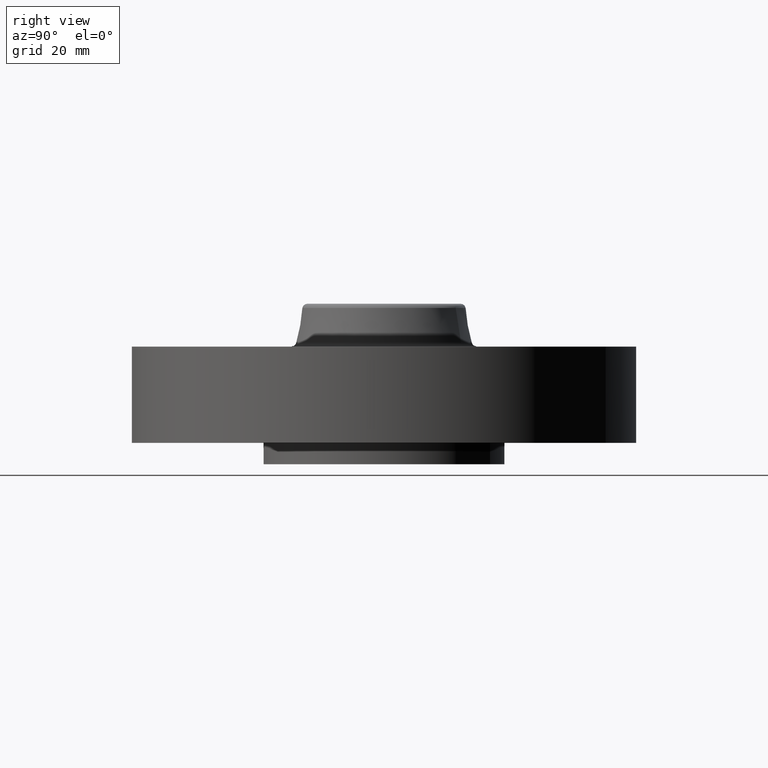
[diagram: clean part render]
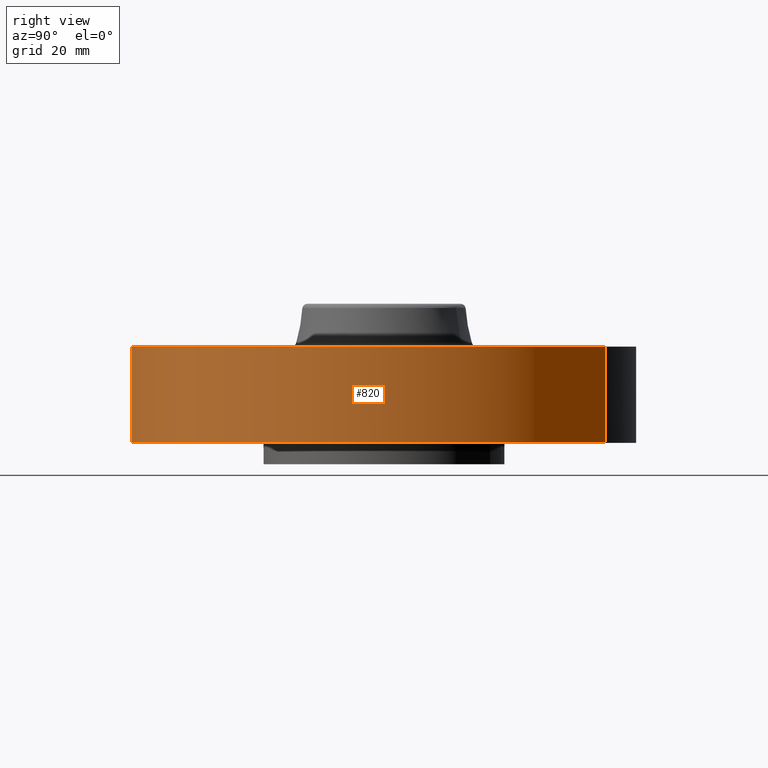
[diagram: same view with one face highlighted and labeled with its STEP entity id]
A machine part, right view. The second image highlights one B-rep face of the part: STEP entity #820.
In plain terms, the highlighted cylindrical surface (partial cylindrical patch) has radius 74.676 mm, axis along (0, 0, -1).
Its self-contained STEP definition (entity closure, byte-faithful):
#562=AXIS2_PLACEMENT_3D('Circle Axis2P3D',#560,#561,$) ;
#793=AXIS2_PLACEMENT_3D('Cylinder Axis2P3D',#790,#791,#792) ;
#804=AXIS2_PLACEMENT_3D('Circle Axis2P3D',#802,#803,$) ;
#555=CARTESIAN_POINT('Vertex',(-1.4095110835,-2.58009273197,2.79741234551E-016)) ;
#557=CARTESIAN_POINT('Vertex',(1.4095110835,2.58009273197,2.79741234551E-016)) ;
#560=CARTESIAN_POINT('Axis2P3D Location',(0.,0.,0.)) ;
#790=CARTESIAN_POINT('Axis2P3D Location',(0.,0.,0.685000000003)) ;
#795=CARTESIAN_POINT('Line Origine',(1.4095110835,2.58009273197,0.560000000002)) ;
#799=CARTESIAN_POINT('Vertex',(1.4095110835,2.58009273197,1.12)) ;
#802=CARTESIAN_POINT('Axis2P3D Location',(0.,0.,1.12)) ;
#806=CARTESIAN_POINT('Vertex',(-1.4095110835,-2.58009273197,1.12)) ;
#809=CARTESIAN_POINT('Line Origine',(-1.4095110835,-2.58009273197,0.560000000002)) ;
#561=DIRECTION('Axis2P3D Direction',(0.,0.,-0.0393700787402)) ;
#791=DIRECTION('Axis2P3D Direction',(0.,0.,-0.0393700787402)) ;
#792=DIRECTION('Axis2P3D XDirection',(-0.0188750212049,-0.0345504945626,0.)) ;
#796=DIRECTION('Vector Direction',(0.,0.,-0.0393700787402)) ;
#803=DIRECTION('Axis2P3D Direction',(0.,0.,-0.0393700787402)) ;
#810=DIRECTION('Vector Direction',(0.,0.,-0.0393700787402)) ;
#797=VECTOR('Line Direction',#796,0.0393700787402) ;
#811=VECTOR('Line Direction',#810,0.0393700787402) ;
#815=ORIENTED_EDGE('',*,*,#564,.F.) ;
#816=ORIENTED_EDGE('',*,*,#801,.T.) ;
#817=ORIENTED_EDGE('',*,*,#808,.T.) ;
#818=ORIENTED_EDGE('',*,*,#813,.F.) ;
#820=ADVANCED_FACE('PartBody',(#819),#794,.T.) ;
#563=CIRCLE('generated circle',#562,2.94000000001) ;
#805=CIRCLE('generated circle',#804,2.94000000001) ;
#794=CYLINDRICAL_SURFACE('generated cylinder',#793,2.94000000001) ;
#564=EDGE_CURVE('',#558,#556,#563,.T.) ;
#801=EDGE_CURVE('',#558,#800,#798,.F.) ;
#808=EDGE_CURVE('',#800,#807,#805,.T.) ;
#813=EDGE_CURVE('',#556,#807,#812,.F.) ;
#814=EDGE_LOOP('',(#815,#816,#817,#818)) ;
#819=FACE_OUTER_BOUND('',#814,.T.) ;
#798=LINE('Line',#795,#797) ;
#812=LINE('Line',#809,#811) ;
#556=VERTEX_POINT('',#555) ;
#558=VERTEX_POINT('',#557) ;
#800=VERTEX_POINT('',#799) ;
#807=VERTEX_POINT('',#806) ;